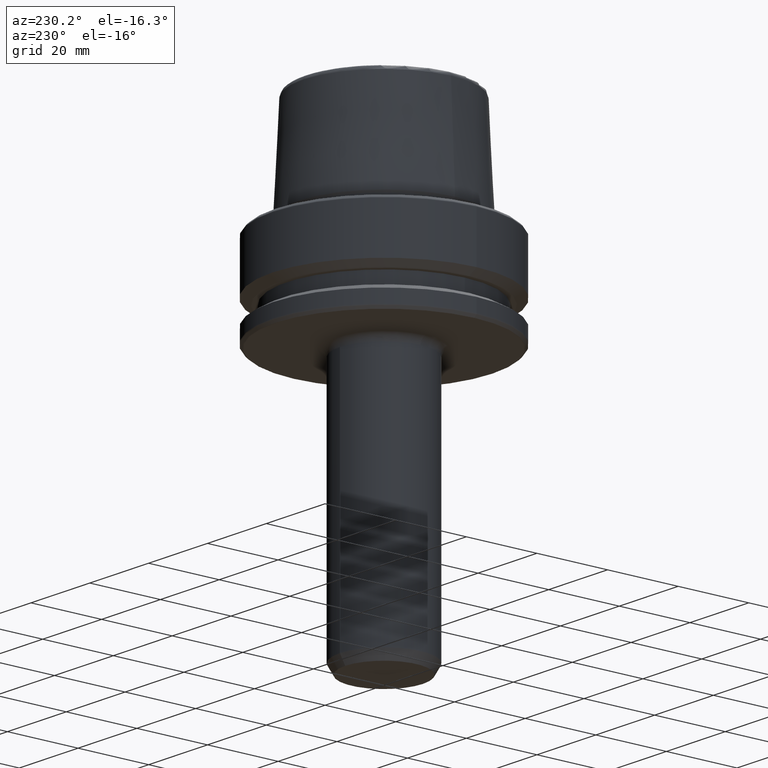
[diagram: clean part render]
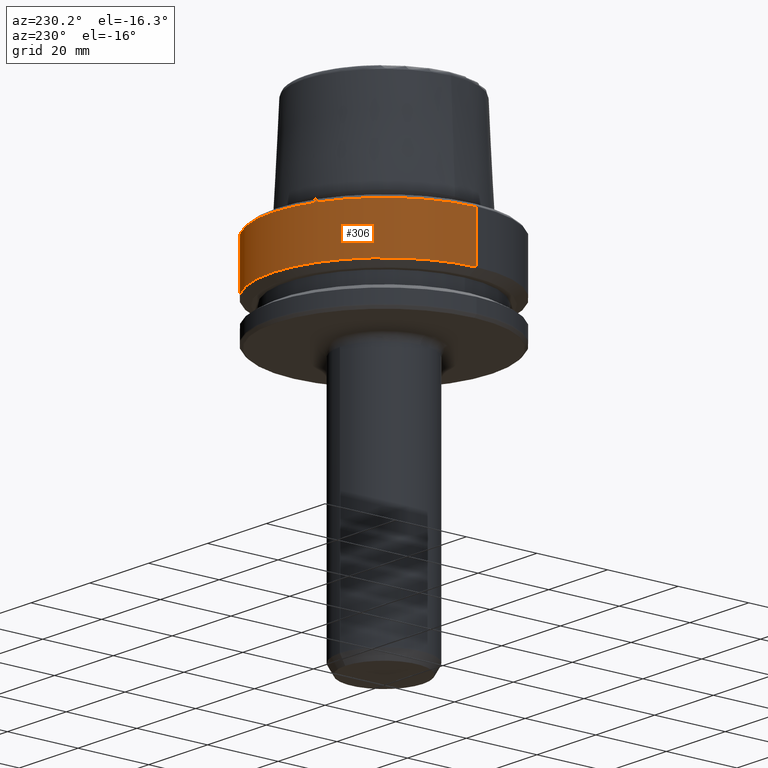
[diagram: same view with one face highlighted and labeled with its STEP entity id]
A machine part, auxiliary view. The second image highlights one B-rep face of the part: STEP entity #306.
In plain terms, the highlighted cylindrical surface (partial cylindrical patch) has radius 31.5 mm, axis along (-0, -0, 1).
Its self-contained STEP definition (entity closure, byte-faithful):
#43 = AXIS2_PLACEMENT_3D ( 'NONE', #297, #500, #110 ) ;
#110 = DIRECTION ( 'NONE',  ( 1.000000000000000000, 0.0000000000000000000, 0.0000000000000000000 ) ) ;
#131 = CARTESIAN_POINT ( 'NONE',  ( 0.0000000000000000000, 0.0000000000000000000, -0.9656854249492363700 ) ) ;
#139 = CARTESIAN_POINT ( 'NONE',  ( -31.50000000000000700, 3.857637417314163500E-015, -0.9656854249492363700 ) ) ;
#144 = LINE ( 'NONE', #790, #360 ) ;
#153 = VERTEX_POINT ( 'NONE', #615 ) ;
#161 = CIRCLE ( 'NONE', #851, 31.50000000000000700 ) ;
#172 = VECTOR ( 'NONE', #934, 1000.000000000000000 ) ;
#199 = DIRECTION ( 'NONE',  ( 1.000000000000000000, 0.0000000000000000000, 0.0000000000000000000 ) ) ;
#279 = CARTESIAN_POINT ( 'NONE',  ( 0.0000000000000000000, 0.0000000000000000000, -14.62250092524070100 ) ) ;
#289 = DIRECTION ( 'NONE',  ( -0.0000000000000000000, -0.0000000000000000000, 1.000000000000000000 ) ) ;
#297 = CARTESIAN_POINT ( 'NONE',  ( 0.0000000000000000000, 0.0000000000000000000, 78.96908074195309300 ) ) ;
#306 = ADVANCED_FACE ( 'NONE', ( #351 ), #944, .T. ) ;
#351 = FACE_OUTER_BOUND ( 'NONE', #772, .T. ) ;
#360 = VECTOR ( 'NONE', #289, 1000.000000000000000 ) ;
#449 = EDGE_CURVE ( 'NONE', #153, #1264, #893, .T. ) ;
#452 = ORIENTED_EDGE ( 'NONE', *, *, #641, .F. ) ;
#500 = DIRECTION ( 'NONE',  ( -0.0000000000000000000, -0.0000000000000000000, 1.000000000000000000 ) ) ;
#532 = ORIENTED_EDGE ( 'NONE', *, *, #1140, .T. ) ;
#536 = ORIENTED_EDGE ( 'NONE', *, *, #659, .F. ) ;
#615 = CARTESIAN_POINT ( 'NONE',  ( 31.50000000000000000, 0.0000000000000000000, -14.62250092524070100 ) ) ;
#641 = EDGE_CURVE ( 'NONE', #153, #1038, #1109, .T. ) ;
#659 = EDGE_CURVE ( 'NONE', #1038, #1075, #161, .T. ) ;
#772 = EDGE_LOOP ( 'NONE', ( #804, #532, #536, #452 ) ) ;
#790 = CARTESIAN_POINT ( 'NONE',  ( -31.50000000000000000, 3.857637417314162700E-015, 78.96908074195309300 ) ) ;
#804 = ORIENTED_EDGE ( 'NONE', *, *, #449, .T. ) ;
#851 = AXIS2_PLACEMENT_3D ( 'NONE', #131, #897, #199 ) ;
#893 = CIRCLE ( 'NONE', #953, 31.50000000000000000 ) ;
#897 = DIRECTION ( 'NONE',  ( -0.0000000000000000000, -0.0000000000000000000, 1.000000000000000000 ) ) ;
#934 = DIRECTION ( 'NONE',  ( -0.0000000000000000000, -0.0000000000000000000, 1.000000000000000000 ) ) ;
#939 = DIRECTION ( 'NONE',  ( -0.0000000000000000000, -0.0000000000000000000, 1.000000000000000000 ) ) ;
#944 = CYLINDRICAL_SURFACE ( 'NONE', #43, 31.50000000000000000 ) ;
#953 = AXIS2_PLACEMENT_3D ( 'NONE', #279, #939, #970 ) ;
#970 = DIRECTION ( 'NONE',  ( 1.000000000000000000, 0.0000000000000000000, 0.0000000000000000000 ) ) ;
#1037 = CARTESIAN_POINT ( 'NONE',  ( -31.50000000000000000, 3.857637417314162700E-015, -14.62250092524070100 ) ) ;
#1038 = VERTEX_POINT ( 'NONE', #1125 ) ;
#1075 = VERTEX_POINT ( 'NONE', #139 ) ;
#1109 = LINE ( 'NONE', #1239, #172 ) ;
#1125 = CARTESIAN_POINT ( 'NONE',  ( 31.50000000000000700, 0.0000000000000000000, -0.9656854249492363700 ) ) ;
#1140 = EDGE_CURVE ( 'NONE', #1264, #1075, #144, .T. ) ;
#1239 = CARTESIAN_POINT ( 'NONE',  ( 31.50000000000000000, 0.0000000000000000000, 78.96908074195309300 ) ) ;
#1264 = VERTEX_POINT ( 'NONE', #1037 ) ;